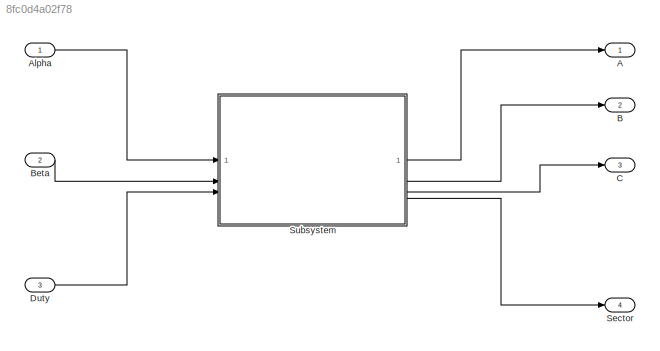
MODEL slx_8fc0d4a02f78
KIND model
CONFIG AbsTol = auto
CONFIG EnableMultiTasking = off
CONFIG FixedStep = auto
CONFIG MaxStep = auto
CONFIG MinStep = auto
CONFIG RelTol = 1e-3
CONFIG SampleTimeConstraint = Unconstrained
CONFIG SolverName = VariableStepAuto
CONFIG StartTime = 0.0
CONFIG StopTime = 10.0
BLOCK [Outport] A
BLOCK [Inport] Alpha
BLOCK [Outport] B
  Port = 2
BLOCK [Inport] Beta
  Port = 2
BLOCK [Outport] C
  Port = 3
BLOCK [Inport] Duty
  Port = 3
BLOCK [Outport] Sector
  Port = 4
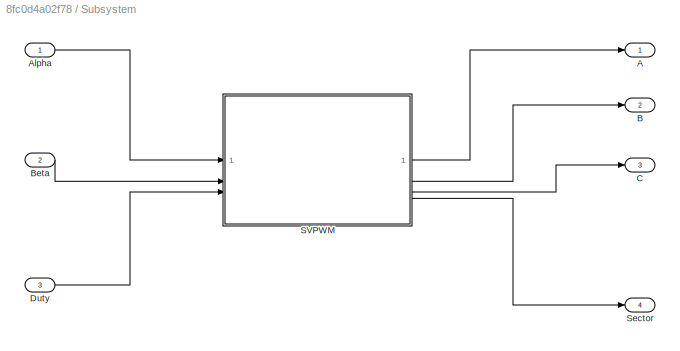
BLOCK [SubSystem] Subsystem
BLOCK [Outport] Subsystem/A
BLOCK [Inport] Subsystem/Alpha
BLOCK [Outport] Subsystem/B
  Port = 2
BLOCK [Inport] Subsystem/Beta
  Port = 2
BLOCK [Outport] Subsystem/C
  Port = 3
BLOCK [Inport] Subsystem/Duty
  Port = 3
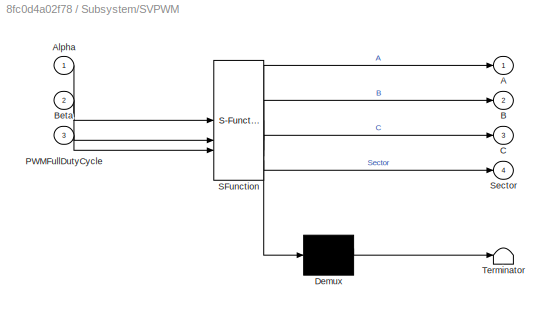
BLOCK [SubSystem] Subsystem/SVPWM
  ErrorFcn = Stateflow.Translate.translate
  LibrarySourceBlock = simulink/User-Defined\nFunctions/MATLAB Function
  PermitHierarchicalResolution = ExplicitOnly
  SFBlockType = MATLAB Function
  TreatAsAtomicUnit = on
BLOCK [Demux] Subsystem/SVPWM/ Demux 
  Outputs = 1
BLOCK [S-Function] Subsystem/SVPWM/ SFunction 
  EnableBusSupport = on
  FunctionName = sf_sfun
  PortCounts = [3 5]
  SFcnIsStateOwnerBlock = off
  SFunctionDeploymentMode = off
  Tag = Stateflow S-Function 2
BLOCK [Terminator] Subsystem/SVPWM/ Terminator 
BLOCK [Outport] Subsystem/SVPWM/A
BLOCK [Inport] Subsystem/SVPWM/Alpha
BLOCK [Outport] Subsystem/SVPWM/B
  Port = 2
BLOCK [Inport] Subsystem/SVPWM/Beta
  Port = 2
BLOCK [Outport] Subsystem/SVPWM/C
  Port = 3
BLOCK [Inport] Subsystem/SVPWM/PWMFullDutyCycle
  Port = 3
BLOCK [Outport] Subsystem/SVPWM/Sector
  Port = 4
BLOCK [Outport] Subsystem/Sector
  Port = 4
LINE Alpha:1 -> Subsystem:1
LINE Beta:1 -> Subsystem:2
LINE Duty:1 -> Subsystem:3
LINE Subsystem/Alpha:1 -> Subsystem/SVPWM:1
LINE Subsystem/Beta:1 -> Subsystem/SVPWM:2
LINE Subsystem/Duty:1 -> Subsystem/SVPWM:3
LINE Subsystem/SVPWM:1 -> Subsystem/A:1
LINE Subsystem/SVPWM:2 -> Subsystem/B:1
LINE Subsystem/SVPWM:3 -> Subsystem/C:1
LINE Subsystem/SVPWM:4 -> Subsystem/Sector:1
LINE Subsystem:1 -> A:1
LINE Subsystem:2 -> B:1
LINE Subsystem:3 -> C:1
LINE Subsystem:4 -> Sector:1
CHART Subsystem/SVPWM states=1 transitions=1
  STATE_LABEL 'eML_blk_kernel()'
  STATE_LABEL 'SCRIPT:\nfunction [A, B, C, Sector] = fcn(Alpha, Beta, PWMFullDutyCycle)\n\n% 初始化变量\nA = 0;\nB = 0;\nC = 0;                                  \nSector = 0;\nONE_BY_SQRT3 = tand(30);\nTWO_BY_SQRT3 = (2.0 * 0.57735026919);\n\n% 扇区判断\nif Beta >= 0.0\n    if Alpha >= 0.0\n        if (ONE_BY_SQRT3 * Beta) > Alpha\n                Sector = 2;\n        else\n            Sector = 1;\n        end\n    else\n        if -ONE_BY_...<+1608ch>'
CHART  states=0 transitions=0
